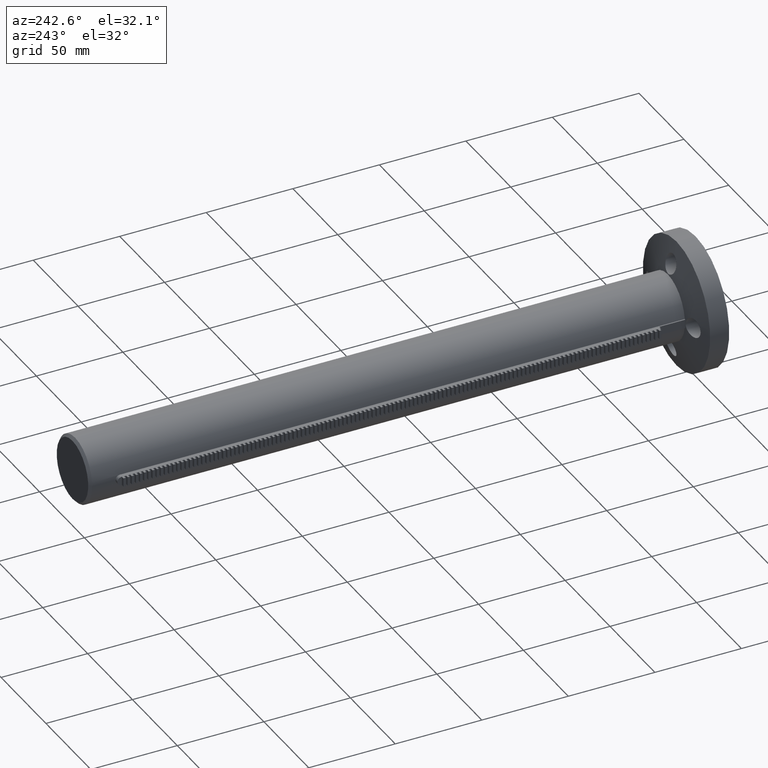
[diagram: clean part render]
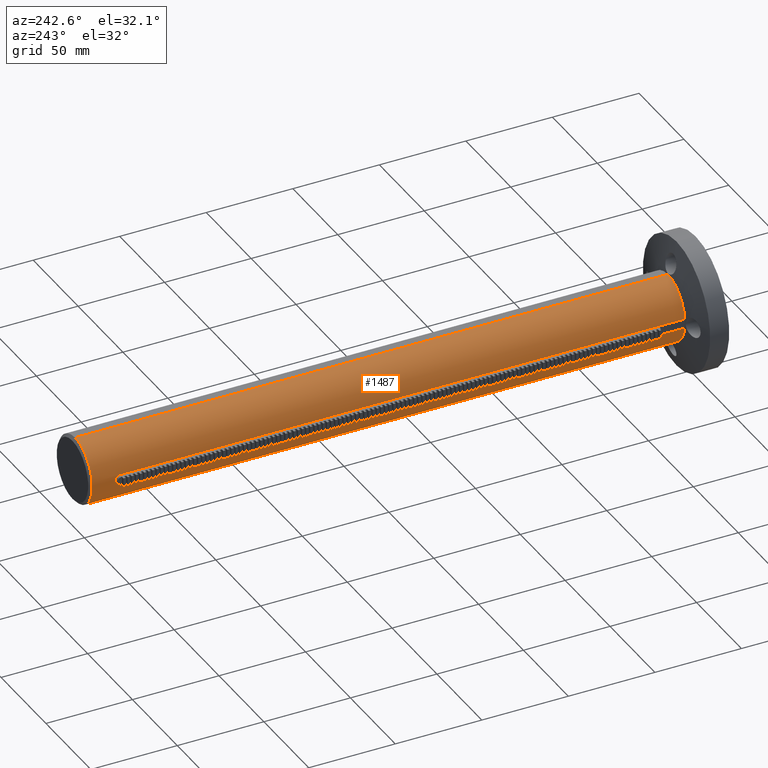
[diagram: same view with one face highlighted and labeled with its STEP entity id]
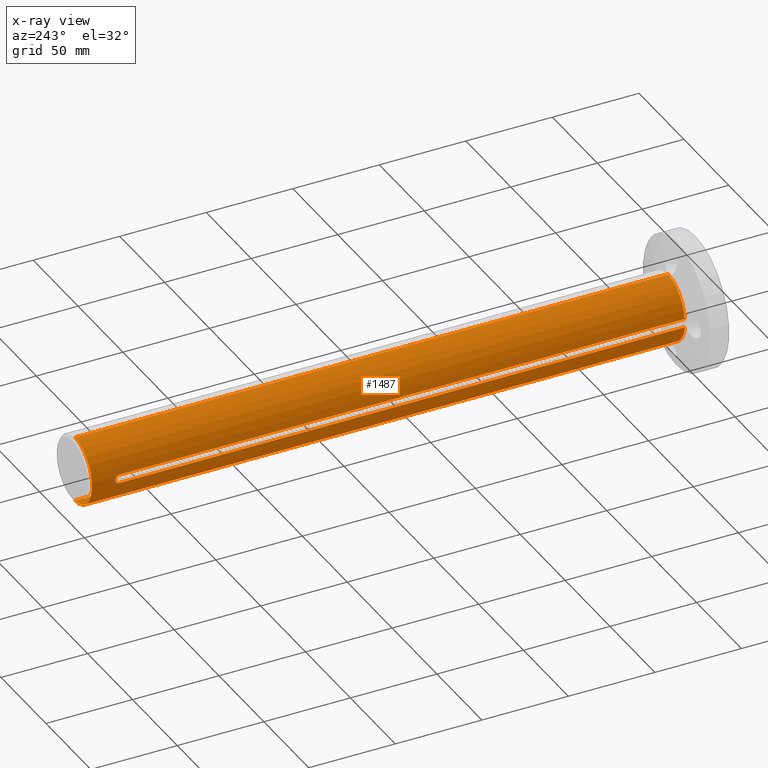
[diagram: x-ray of the same camera — body ghosted, the highlighted face saturated]
A machine part, auxiliary view. The second image highlights one B-rep face of the part: STEP entity #1487.
The next image is the same camera in x-ray: the body ghosted, the highlighted face saturated — about 0% of this face is hidden behind the body in this view.
In plain terms, the highlighted cylindrical surface (partial cylindrical patch) has radius 19.05 mm, axis along (-0, -1, 0).
Its self-contained STEP definition (entity closure, byte-faithful):
#67 = CARTESIAN_POINT ( 'NONE',  ( 0.0000000000000000000, 12.92990217911026100, -19.04999999999999700 ) ) ;
#169 = EDGE_CURVE ( 'NONE', #4530, #14431, #18716, .T. ) ;
#758 = CARTESIAN_POINT ( 'NONE',  ( -18.90013227466935000, 338.6799021791101200, 2.384848003542702400 ) ) ;
#840 = DIRECTION ( 'NONE',  ( -0.0000000000000000000, -1.000000000000000000, 0.0000000000000000000 ) ) ;
#863 = CARTESIAN_POINT ( 'NONE',  ( -19.01835255498312400, 341.6769146376949500, 1.107899988645364200 ) ) ;
#978 = EDGE_CURVE ( 'NONE', #12289, #17051, #12247, .T. ) ;
#989 = CARTESIAN_POINT ( 'NONE',  ( -18.95709923756949800, 341.0828570276678400, 1.882625265433925500 ) ) ;
#1010 = VECTOR ( 'NONE', #17849, 1000.000000000000000 ) ;
#1044 = CARTESIAN_POINT ( 'NONE',  ( -18.89574244476655500, 340.0797363154757100, -2.419599115658196200 ) ) ;
#1101 = CARTESIAN_POINT ( 'NONE',  ( 0.0000000000000000000, -27.76727455493247000, -19.04999999999999000 ) ) ;
#1116 = CARTESIAN_POINT ( 'NONE',  ( -18.88524556366688900, 339.4299021791102900, -2.500000000000002200 ) ) ;
#1216 = EDGE_CURVE ( 'NONE', #14892, #9332, #7966, .T. ) ;
#1351 = EDGE_CURVE ( 'NONE', #11876, #14875, #17561, .T. ) ;
#1487 = ADVANCED_FACE ( 'NONE', ( #3677 ), #10124, .T. ) ;
#1760 = DIRECTION ( 'NONE',  ( 0.0000000000000000000, 0.0000000000000000000, -1.000000000000000000 ) ) ;
#1782 = ORIENTED_EDGE ( 'NONE', *, *, #13926, .F. ) ;
#2066 = DIRECTION ( 'NONE',  ( 0.0000000000000000000, 0.0000000000000000000, -1.000000000000000000 ) ) ;
#2441 = CIRCLE ( 'NONE', #5943, 19.04999999999999000 ) ;
#2520 = CARTESIAN_POINT ( 'NONE',  ( -19.03961886168021100, 341.8497350244147100, -0.6489651603153560000 ) ) ;
#2591 = CARTESIAN_POINT ( 'NONE',  ( -18.90185929943843800, 340.2365196811465500, 2.371964562016376300 ) ) ;
#3041 = DIRECTION ( 'NONE',  ( -0.0000000000000000000, -1.000000000000000000, 0.0000000000000000000 ) ) ;
#3081 = ORIENTED_EDGE ( 'NONE', *, *, #19214, .F. ) ;
#3170 = CARTESIAN_POINT ( 'NONE',  ( -18.90013227466938900, 338.6799021791102900, -2.384848003542355600 ) ) ;
#3461 = ORIENTED_EDGE ( 'NONE', *, *, #1216, .T. ) ;
#3677 = FACE_OUTER_BOUND ( 'NONE', #7428, .T. ) ;
#3721 = AXIS2_PLACEMENT_3D ( 'NONE', #10924, #3041, #1760 ) ;
#3934 = CARTESIAN_POINT ( 'NONE',  ( -18.88524556366688900, 339.4299021791102900, 2.500000000000002200 ) ) ;
#4068 = CARTESIAN_POINT ( 'NONE',  ( -19.03359230812061400, 341.8024557306740700, -0.8048976050859278900 ) ) ;
#4075 = CARTESIAN_POINT ( 'NONE',  ( 2.332952152375706500E-015, -27.76727455493247000, 19.04999999999999000 ) ) ;
#4139 = CARTESIAN_POINT ( 'NONE',  ( -18.98924086069826300, 341.4166127125311600, 1.526433877152570100 ) ) ;
#4455 = CARTESIAN_POINT ( 'NONE',  ( -18.89535449290443500, 338.8003031222265800, 2.422712348441150800 ) ) ;
#4530 = VERTEX_POINT ( 'NONE', #6986 ) ;
#4879 = EDGE_CURVE ( 'NONE', #17677, #11640, #12792, .T. ) ;
#4983 = ORIENTED_EDGE ( 'NONE', *, *, #1351, .F. ) ;
#5657 = CARTESIAN_POINT ( 'NONE',  ( -18.92639247533033100, 340.6845104222986200, -2.168515019486612100 ) ) ;
#5943 = AXIS2_PLACEMENT_3D ( 'NONE', #17423, #8310, #18961 ) ;
#5985 = CARTESIAN_POINT ( 'NONE',  ( -18.88524556366688900, 339.4299021791102900, 2.500000000000002200 ) ) ;
#6042 = CARTESIAN_POINT ( 'NONE',  ( -18.88651750725959700, 339.1773507186765600, -2.490447989823823000 ) ) ;
#6287 = VECTOR ( 'NONE', #19665, 1000.000000000000000 ) ;
#6332 = DIRECTION ( 'NONE',  ( 0.0000000000000000000, 0.0000000000000000000, -1.000000000000000000 ) ) ;
#6511 = DIRECTION ( 'NONE',  ( 0.0000000000000000000, 0.0000000000000000000, -1.000000000000000000 ) ) ;
#6915 = ORIENTED_EDGE ( 'NONE', *, *, #13530, .F. ) ;
#6940 = CARTESIAN_POINT ( 'NONE',  ( 2.332952152375707600E-015, 12.92990217911026100, 19.04999999999999700 ) ) ;
#6942 = CARTESIAN_POINT ( 'NONE',  ( -18.94625560405755100, 340.9551271224933100, -1.987508013995824800 ) ) ;
#6986 = CARTESIAN_POINT ( 'NONE',  ( -18.88524556366687400, 12.92990217911026100, 2.499999999999998200 ) ) ;
#7001 = CARTESIAN_POINT ( 'NONE',  ( -19.04784864168842900, 341.9136578993527600, -0.3281833339467373200 ) ) ;
#7061 = CARTESIAN_POINT ( 'NONE',  ( -18.97857028410143300, 341.3131913913372300, 1.652198342975302700 ) ) ;
#7100 = VERTEX_POINT ( 'NONE', #11318 ) ;
#7428 = EDGE_LOOP ( 'NONE', ( #9705, #18062, #3461, #6915, #3081, #7609, #14540, #1782, #4983, #18837, #11002, #10699 ) ) ;
#7582 = CARTESIAN_POINT ( 'NONE',  ( -18.88524556366689200, 339.3033624569869700, -2.500000000000002700 ) ) ;
#7609 = ORIENTED_EDGE ( 'NONE', *, *, #15453, .F. ) ;
#7721 = CARTESIAN_POINT ( 'NONE',  ( -18.88524556366688900, 339.4299021791102900, -2.500000000000002200 ) ) ;
#7966 = LINE ( 'NONE', #1101, #1010 ) ;
#8310 = DIRECTION ( 'NONE',  ( -0.0000000000000000000, -1.000000000000000000, 0.0000000000000000000 ) ) ;
#8481 = DIRECTION ( 'NONE',  ( -0.0000000000000000000, -1.000000000000000000, 0.0000000000000000000 ) ) ;
#8515 = CARTESIAN_POINT ( 'NONE',  ( -18.88524556366688900, 339.4299021791102900, -2.500000000000002200 ) ) ;
#8610 = CARTESIAN_POINT ( 'NONE',  ( -19.05000788051407700, 341.9299622286316700, -0.1623334700682919900 ) ) ;
#8669 = CARTESIAN_POINT ( 'NONE',  ( -18.98937618680734500, 341.4178645298822500, -1.524633534102138200 ) ) ;
#9267 = B_SPLINE_CURVE_WITH_KNOTS ( 'NONE', 3,
 ( #3934, #10142, #14627, #13232, #2591, #16063, #13116, #16201, #989, #7061, #4139, #14771, #863, #17723, #14573, #17597, #16133, #8610, #7001, #2520, #4068, #14707, #17789, #8669, #19335, #17663, #6942, #5657, #10211, #16322, #1044, #11741, #17862, #1116 ),
 .UNSPECIFIED., .F., .F.,
 ( 4, 2, 2, 2, 2, 2, 2, 2, 2, 2, 2, 2, 2, 2, 2, 2, 4 ),
 ( 0.0000000000000000000, 0.0004890357432474953100, 0.0009780714864949906200, 0.001467107229742485900, 0.001956142972989981200, 0.002445178716237476600, 0.002934214459484971900, 0.003423250202732467200, 0.003912285945979962500, 0.004401321689227457800, 0.004890357432474953100, 0.005379393175722448400, 0.005868428918969943700, 0.006357464662217439000, 0.006846500405464934400, 0.007335536148712429700, 0.007824571891959925000 ),
 .UNSPECIFIED. ) ;
#9332 = VERTEX_POINT ( 'NONE', #67 ) ;
#9334 = EDGE_CURVE ( 'NONE', #12289, #14892, #15683, .T. ) ;
#9480 = DIRECTION ( 'NONE',  ( -0.0000000000000000000, -1.000000000000000000, 0.0000000000000000000 ) ) ;
#9705 = ORIENTED_EDGE ( 'NONE', *, *, #978, .F. ) ;
#9996 = AXIS2_PLACEMENT_3D ( 'NONE', #18619, #9480, #6332 ) ;
#10124 = CYLINDRICAL_SURFACE ( 'NONE', #3721, 19.04999999999999000 ) ;
#10142 = CARTESIAN_POINT ( 'NONE',  ( -18.88524556366687100, 339.5952751990632800, 2.500000000000000000 ) ) ;
#10211 = CARTESIAN_POINT ( 'NONE',  ( -18.91713763177529400, 340.5382514713938900, -2.246863280532718700 ) ) ;
#10699 = ORIENTED_EDGE ( 'NONE', *, *, #11913, .F. ) ;
#10745 = DIRECTION ( 'NONE',  ( -0.0000000000000000000, -1.000000000000000000, 0.0000000000000000000 ) ) ;
#10776 = VERTEX_POINT ( 'NONE', #18943 ) ;
#10841 = CARTESIAN_POINT ( 'NONE',  ( -18.88524556366688900, 339.4299021791102900, 2.500000000000002200 ) ) ;
#10924 = CARTESIAN_POINT ( 'NONE',  ( 0.0000000000000000000, -27.76727455493247000, 0.0000000000000000000 ) ) ;
#11002 = ORIENTED_EDGE ( 'NONE', *, *, #169, .F. ) ;
#11088 = AXIS2_PLACEMENT_3D ( 'NONE', #13305, #14776, #15048 ) ;
#11318 = CARTESIAN_POINT ( 'NONE',  ( -18.88524556366687400, 12.92990217911026100, -2.499999999999998200 ) ) ;
#11640 = VERTEX_POINT ( 'NONE', #12296 ) ;
#11741 = CARTESIAN_POINT ( 'NONE',  ( -18.88743229368662900, 339.7589926141432700, -2.483635192786878100 ) ) ;
#11876 = VERTEX_POINT ( 'NONE', #758 ) ;
#11913 = EDGE_CURVE ( 'NONE', #17051, #4530, #2441, .T. ) ;
#12232 = CARTESIAN_POINT ( 'NONE',  ( 0.0000000000000000000, 355.4299021791102300, -19.04999999999999400 ) ) ;
#12247 = LINE ( 'NONE', #4075, #16761 ) ;
#12289 = VERTEX_POINT ( 'NONE', #12470 ) ;
#12296 = CARTESIAN_POINT ( 'NONE',  ( -18.90013227466938900, 338.6799021791102900, -2.384848003542355600 ) ) ;
#12370 = CARTESIAN_POINT ( 'NONE',  ( -18.89533440279697600, 338.8008093964779200, -2.422871564327393900 ) ) ;
#12470 = CARTESIAN_POINT ( 'NONE',  ( 2.332952152375707600E-015, 355.4299021791102300, 19.04999999999999700 ) ) ;
#12792 = B_SPLINE_CURVE_WITH_KNOTS ( 'NONE', 3,
 ( #7721, #7582, #6042, #15432, #12370, #3170 ),
 .UNSPECIFIED., .F., .F.,
 ( 4, 2, 4 ),
 ( 0.007824571891959925000, 0.008203633442951326800, 0.008582694993942726800 ),
 .UNSPECIFIED. ) ;
#13116 = CARTESIAN_POINT ( 'NONE',  ( -18.92627190114813700, 340.6827453374133900, 2.169576589252722300 ) ) ;
#13232 = CARTESIAN_POINT ( 'NONE',  ( -18.89567434677386600, 340.0776350358265700, 2.420128108659363800 ) ) ;
#13305 = CARTESIAN_POINT ( 'NONE',  ( 0.0000000000000000000, 12.92990217911026100, 0.0000000000000000000 ) ) ;
#13349 = CIRCLE ( 'NONE', #15836, 19.04999999999999000 ) ;
#13530 = EDGE_CURVE ( 'NONE', #7100, #9332, #17766, .T. ) ;
#13623 = CARTESIAN_POINT ( 'NONE',  ( -18.88524556366687400, 339.3023119208687000, 2.500000000000000000 ) ) ;
#13637 = CARTESIAN_POINT ( 'NONE',  ( 0.0000000000000000000, 355.4299021791102300, 0.0000000000000000000 ) ) ;
#13926 = EDGE_CURVE ( 'NONE', #14875, #17677, #9267, .T. ) ;
#14379 = DIRECTION ( 'NONE',  ( -0.0000000000000000000, -1.000000000000000000, 0.0000000000000000000 ) ) ;
#14431 = VERTEX_POINT ( 'NONE', #17442 ) ;
#14540 = ORIENTED_EDGE ( 'NONE', *, *, #4879, .F. ) ;
#14573 = CARTESIAN_POINT ( 'NONE',  ( -19.03961441798892200, 341.8497021435904300, 0.6493489757564328000 ) ) ;
#14627 = CARTESIAN_POINT ( 'NONE',  ( -18.88741644192191400, 339.7578483407340300, 2.483753053560113800 ) ) ;
#14707 = CARTESIAN_POINT ( 'NONE',  ( -19.01836645262780200, 341.6770418565065500, -1.107805840381046900 ) ) ;
#14771 = CARTESIAN_POINT ( 'NONE',  ( -19.00923054642898400, 341.5993712951111500, 1.253165144600933300 ) ) ;
#14776 = DIRECTION ( 'NONE',  ( -0.0000000000000000000, -1.000000000000000000, 0.0000000000000000000 ) ) ;
#14875 = VERTEX_POINT ( 'NONE', #10841 ) ;
#14892 = VERTEX_POINT ( 'NONE', #12232 ) ;
#15048 = DIRECTION ( 'NONE',  ( 0.0000000000000000000, 0.0000000000000000000, -1.000000000000000000 ) ) ;
#15095 = CARTESIAN_POINT ( 'NONE',  ( -18.88653844447113500, 339.1758588582606500, 2.490289588489417800 ) ) ;
#15432 = CARTESIAN_POINT ( 'NONE',  ( -18.89153999041059600, 338.9263925988368600, -2.452058631590529700 ) ) ;
#15453 = EDGE_CURVE ( 'NONE', #11640, #10776, #13349, .T. ) ;
#15683 = CIRCLE ( 'NONE', #17021, 19.04999999999999400 ) ;
#15836 = AXIS2_PLACEMENT_3D ( 'NONE', #18888, #14379, #2066 ) ;
#15986 = CIRCLE ( 'NONE', #9996, 19.04999999999999000 ) ;
#16063 = CARTESIAN_POINT ( 'NONE',  ( -18.91719378397075200, 340.5392116395971100, 2.246392708082725500 ) ) ;
#16133 = CARTESIAN_POINT ( 'NONE',  ( -19.04999207484591000, 341.9298417894322000, 0.1641778044092233300 ) ) ;
#16201 = CARTESIAN_POINT ( 'NONE',  ( -18.94619227724680100, 340.9543856029375800, 1.988121939524000400 ) ) ;
#16322 = CARTESIAN_POINT ( 'NONE',  ( -18.90181987833964100, 340.2355923722813600, -2.372276558021756600 ) ) ;
#16510 = CARTESIAN_POINT ( 'NONE',  ( -18.89157326840511400, 338.9251803251147000, 2.451802621237351600 ) ) ;
#16544 = EDGE_CURVE ( 'NONE', #14431, #11876, #15986, .T. ) ;
#16579 = VECTOR ( 'NONE', #840, 1000.000000000000000 ) ;
#16761 = VECTOR ( 'NONE', #8481, 1000.000000000000000 ) ;
#17021 = AXIS2_PLACEMENT_3D ( 'NONE', #13637, #10745, #6511 ) ;
#17051 = VERTEX_POINT ( 'NONE', #6940 ) ;
#17423 = CARTESIAN_POINT ( 'NONE',  ( 0.0000000000000000000, 12.92990217911026100, 0.0000000000000000000 ) ) ;
#17442 = CARTESIAN_POINT ( 'NONE',  ( -18.88524556366687400, 338.6799021791102900, 2.499999999999998200 ) ) ;
#17561 = B_SPLINE_CURVE_WITH_KNOTS ( 'NONE', 3,
 ( #19517, #4455, #16510, #15095, #13623, #5985 ),
 .UNSPECIFIED., .F., .F.,
 ( 4, 2, 4 ),
 ( 0.01489264656786609900, 0.01526995235080510000, 0.01564725813374410300 ),
 .UNSPECIFIED. ) ;
#17597 = CARTESIAN_POINT ( 'NONE',  ( -19.04788581693053500, 341.9139450082961400, 0.3265228677813319900 ) ) ;
#17663 = CARTESIAN_POINT ( 'NONE',  ( -18.95694956313004600, 341.0812380336811900, -1.884217988164692300 ) ) ;
#17677 = VERTEX_POINT ( 'NONE', #8515 ) ;
#17723 = CARTESIAN_POINT ( 'NONE',  ( -19.03349031249874600, 341.8016282508531300, 0.8071076845687729100 ) ) ;
#17766 = CIRCLE ( 'NONE', #11088, 19.04999999999999000 ) ;
#17789 = CARTESIAN_POINT ( 'NONE',  ( -19.00916951126480800, 341.5987986386033400, -1.253949707681670600 ) ) ;
#17796 = LINE ( 'NONE', #19118, #16579 ) ;
#17849 = DIRECTION ( 'NONE',  ( -0.0000000000000000000, -1.000000000000000000, 0.0000000000000000000 ) ) ;
#17862 = CARTESIAN_POINT ( 'NONE',  ( -18.88524556366688900, 339.5931538908627700, -2.500000000000002700 ) ) ;
#18062 = ORIENTED_EDGE ( 'NONE', *, *, #9334, .T. ) ;
#18220 = CARTESIAN_POINT ( 'NONE',  ( -18.88524556366687400, -27.76727455493247000, 2.499999999999998200 ) ) ;
#18619 = CARTESIAN_POINT ( 'NONE',  ( 0.0000000000000000000, 338.6799021791102900, 0.0000000000000000000 ) ) ;
#18716 = LINE ( 'NONE', #18220, #6287 ) ;
#18837 = ORIENTED_EDGE ( 'NONE', *, *, #16544, .F. ) ;
#18888 = CARTESIAN_POINT ( 'NONE',  ( 0.0000000000000000000, 338.6799021791102900, 0.0000000000000000000 ) ) ;
#18943 = CARTESIAN_POINT ( 'NONE',  ( -18.88524556366687400, 338.6799021791102900, -2.499999999999998200 ) ) ;
#18961 = DIRECTION ( 'NONE',  ( 0.0000000000000000000, 0.0000000000000000000, -1.000000000000000000 ) ) ;
#19118 = CARTESIAN_POINT ( 'NONE',  ( -18.88524556366687400, -27.76727455493247000, -2.499999999999998200 ) ) ;
#19214 = EDGE_CURVE ( 'NONE', #10776, #7100, #17796, .T. ) ;
#19335 = CARTESIAN_POINT ( 'NONE',  ( -18.97868195705914100, 341.3144026945616900, -1.651013427800667800 ) ) ;
#19517 = CARTESIAN_POINT ( 'NONE',  ( -18.90013227466935000, 338.6799021791101200, 2.384848003542702400 ) ) ;
#19665 = DIRECTION ( 'NONE',  ( 0.0000000000000000000, 1.000000000000000000, -0.0000000000000000000 ) ) ;